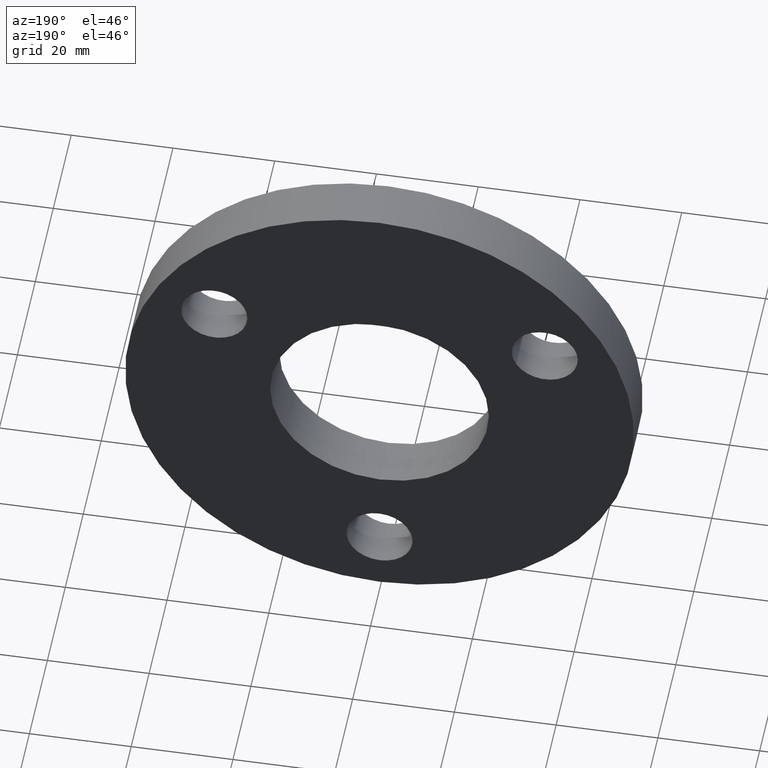
[diagram: clean part render]
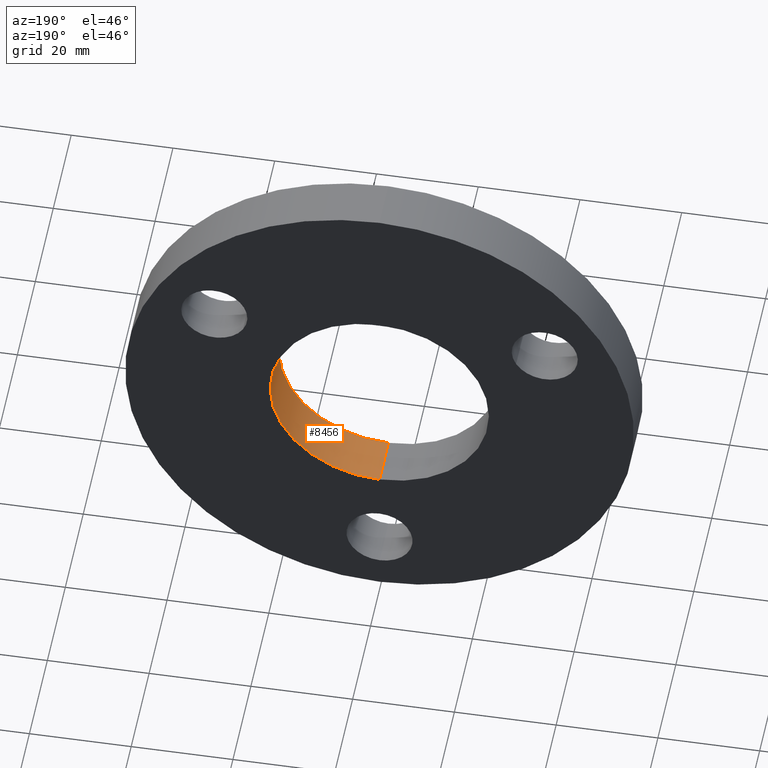
[diagram: same view with one face highlighted and labeled with its STEP entity id]
A machine part, auxiliary view. The second image highlights one B-rep face of the part: STEP entity #8456.
In plain terms, the highlighted cylindrical surface (partial cylindrical patch) has radius 21.5 mm, axis along (-0, 1, -0).
Its self-contained STEP definition (entity closure, byte-faithful):
#399 = VERTEX_POINT ( 'NONE', #6863 ) ;
#718 = VERTEX_POINT ( 'NONE', #4052 ) ;
#972 = EDGE_CURVE ( 'NONE', #718, #1656, #2736, .T. ) ;
#1419 = EDGE_CURVE ( 'NONE', #718, #399, #12147, .T. ) ;
#1656 = VERTEX_POINT ( 'NONE', #9851 ) ;
#1778 = VECTOR ( 'NONE', #3904, 1000.000000000000000 ) ;
#2311 = DIRECTION ( 'NONE',  ( -0.0000000000000000000, 1.000000000000000000, -0.0000000000000000000 ) ) ;
#2471 = CARTESIAN_POINT ( 'NONE',  ( 2.632990618166809200E-015, 10.00000000000000000, -21.50000000000000000 ) ) ;
#2698 = CIRCLE ( 'NONE', #4366, 21.50000000000000000 ) ;
#2736 = CIRCLE ( 'NONE', #10546, 21.50000000000000000 ) ;
#2813 = EDGE_CURVE ( 'NONE', #1656, #3913, #4399, .T. ) ;
#3044 = DIRECTION ( 'NONE',  ( 0.0000000000000000000, 0.0000000000000000000, 1.000000000000000000 ) ) ;
#3598 = EDGE_CURVE ( 'NONE', #399, #3913, #2698, .T. ) ;
#3904 = DIRECTION ( 'NONE',  ( -0.0000000000000000000, 1.000000000000000000, -0.0000000000000000000 ) ) ;
#3913 = VERTEX_POINT ( 'NONE', #2471 ) ;
#4036 = EDGE_LOOP ( 'NONE', ( #8272, #9869, #4765, #9241 ) ) ;
#4052 = CARTESIAN_POINT ( 'NONE',  ( 0.0000000000000000000, 0.0000000000000000000, 21.50000000000000000 ) ) ;
#4366 = AXIS2_PLACEMENT_3D ( 'NONE', #5722, #12741, #11726 ) ;
#4399 = LINE ( 'NONE', #8822, #1778 ) ;
#4765 = ORIENTED_EDGE ( 'NONE', *, *, #1419, .T. ) ;
#5722 = CARTESIAN_POINT ( 'NONE',  ( 0.0000000000000000000, 10.00000000000000000, 0.0000000000000000000 ) ) ;
#6077 = DIRECTION ( 'NONE',  ( 0.0000000000000000000, 1.000000000000000000, 0.0000000000000000000 ) ) ;
#6637 = CARTESIAN_POINT ( 'NONE',  ( 0.0000000000000000000, 0.0000000000000000000, 21.50000000000000000 ) ) ;
#6863 = CARTESIAN_POINT ( 'NONE',  ( 0.0000000000000000000, 10.00000000000000000, 21.50000000000000000 ) ) ;
#7554 = FACE_OUTER_BOUND ( 'NONE', #4036, .T. ) ;
#7957 = CARTESIAN_POINT ( 'NONE',  ( 0.0000000000000000000, 0.0000000000000000000, 0.0000000000000000000 ) ) ;
#8231 = CARTESIAN_POINT ( 'NONE',  ( 0.0000000000000000000, 0.0000000000000000000, 0.0000000000000000000 ) ) ;
#8272 = ORIENTED_EDGE ( 'NONE', *, *, #2813, .F. ) ;
#8456 = ADVANCED_FACE ( 'NONE', ( #7554 ), #11599, .F. ) ;
#8822 = CARTESIAN_POINT ( 'NONE',  ( 2.632990618166809200E-015, 0.0000000000000000000, -21.50000000000000000 ) ) ;
#8940 = AXIS2_PLACEMENT_3D ( 'NONE', #8231, #2311, #12208 ) ;
#9241 = ORIENTED_EDGE ( 'NONE', *, *, #3598, .T. ) ;
#9851 = CARTESIAN_POINT ( 'NONE',  ( 2.632990618166809200E-015, 0.0000000000000000000, -21.50000000000000000 ) ) ;
#9869 = ORIENTED_EDGE ( 'NONE', *, *, #972, .F. ) ;
#10546 = AXIS2_PLACEMENT_3D ( 'NONE', #7957, #6077, #3044 ) ;
#11483 = DIRECTION ( 'NONE',  ( -0.0000000000000000000, 1.000000000000000000, -0.0000000000000000000 ) ) ;
#11530 = VECTOR ( 'NONE', #11483, 1000.000000000000000 ) ;
#11599 = CYLINDRICAL_SURFACE ( 'NONE', #8940, 21.50000000000000000 ) ;
#11726 = DIRECTION ( 'NONE',  ( 0.0000000000000000000, 0.0000000000000000000, 1.000000000000000000 ) ) ;
#12147 = LINE ( 'NONE', #6637, #11530 ) ;
#12208 = DIRECTION ( 'NONE',  ( 0.0000000000000000000, 0.0000000000000000000, 1.000000000000000000 ) ) ;
#12741 = DIRECTION ( 'NONE',  ( 0.0000000000000000000, 1.000000000000000000, 0.0000000000000000000 ) ) ;